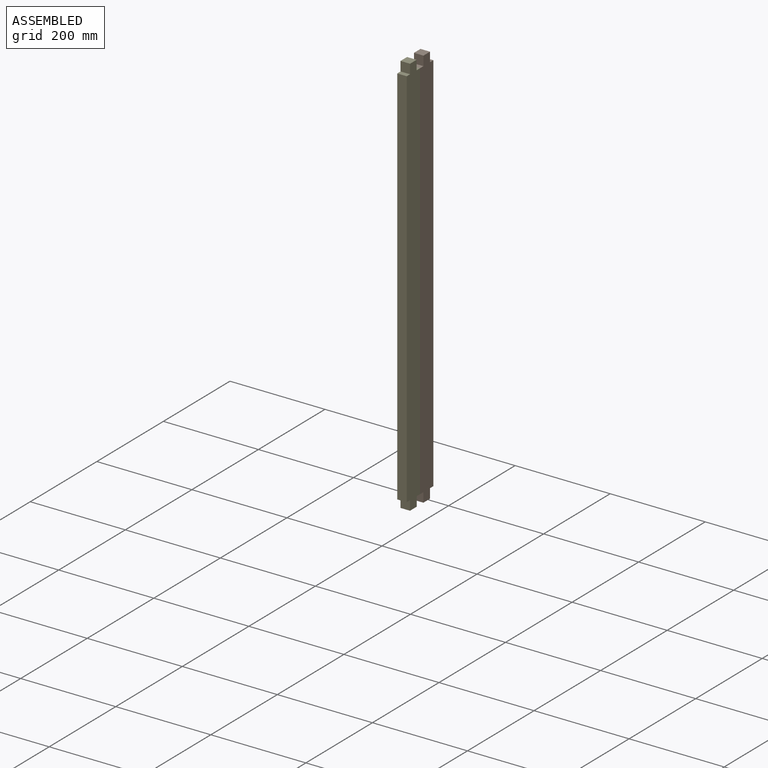
[diagram: assembled view]
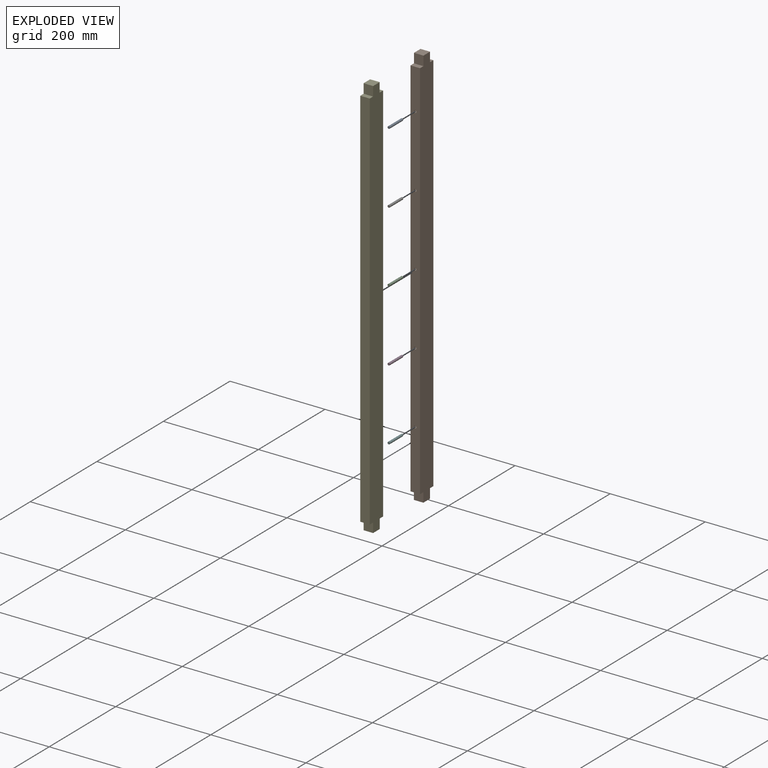
[diagram: exploded view]
GUIDED TOUR — MATED ASSEMBLY (Onshape document 5e775760d3399826247aa90b, AutoMate assembly 5e775760d3399826247aa90b_3890d378bcc9b2aa740e7287_1716aaf2044ccc38ed1a56b9_default)

This assembly has 7 components, labeled P0..P6 below (a component is one placed occurrence of a part; the same part can appear more than once), held together by 7 mates. A mate is a constraint between two components; its type names the relative motion it leaves free:
  PLANAR — leaves sliding in the plane through the listed point (normal = the listed direction) and rotation about that normal free,
  REVOLUTE — leaves rotation about the listed axis free (a hinge),
  SLIDER — leaves translation along the listed axis free.
Axis/direction vectors are unit vectors and 'through' points are millimeter coordinates, both in the assembly's world frame.

MATES
  1. REVOLUTE "Revolute 1": P5 <-> P1, axis (0.000, -1.000, 0.000) through (-237.71, -17.32, 372.23) mm
  2. REVOLUTE "Revolute 3": P2 <-> P1, axis (0.000, -1.000, 0.000) through (-237.71, -17.32, 672.23) mm
  3. PLANAR "Planar 1": P1 <-> P4, direction (0.000, -1.000, 0.000) through (-237.71, -17.32, 652.11) mm
  4. REVOLUTE "Revolute 5": P0 <-> P1, axis (0.000, -1.000, 0.000) through (-237.71, -17.32, 972.23) mm
  5. REVOLUTE "Revolute 2": P3 <-> P1, axis (0.000, -1.000, 0.000) through (-237.71, -17.32, 522.23) mm
  6. REVOLUTE "Revolute 4": P6 <-> P1, axis (0.000, -1.000, 0.000) through (-237.71, -37.32, 822.23) mm
  7. SLIDER "Slider 1": P1 <-> P4, axis (0.000, -1.000, 0.000) through (-237.71, -17.32, 672.23) mm

ASSEMBLY ORDER
  1. P6 — the base component [order verified]
  2. P2 [order verified]
  3. P3 [order verified]
  4. P5 [order verified]
  5. P0 [order verified]
  6. P4 [order verified]
  7. P1 [order verified]
Order-tag legend:
  [order verified] — this step's position reverses a verified removal order: the component was checked to insert without passing through the ones already placed.

Of the 7 components, 2 carry the full construction recipe — the FeatureScript program that regenerates the part's solid from scratch; the rest are supplied as boundary geometry only.
Each toured component is shown spotlighted twice — in the assembled view, then in the exploded view, where a leader line traces a displaced component back to its assembled socket (saturated green if recipe-attached, orange if geometry-only; every other component desaturated gray) — followed by its recipe or geometry summary and the mates that hold it.
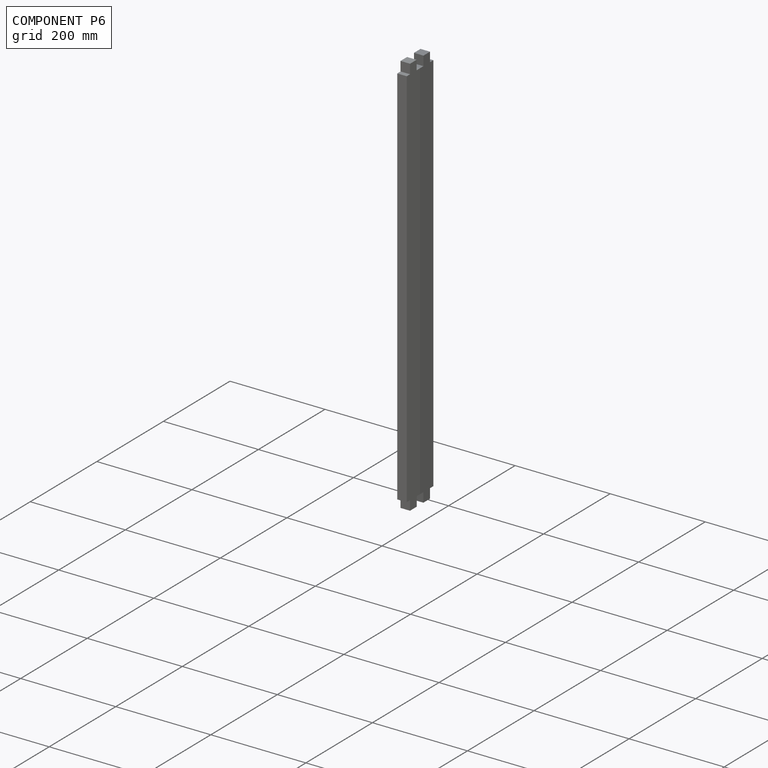
[diagram: component P6 — assembled]
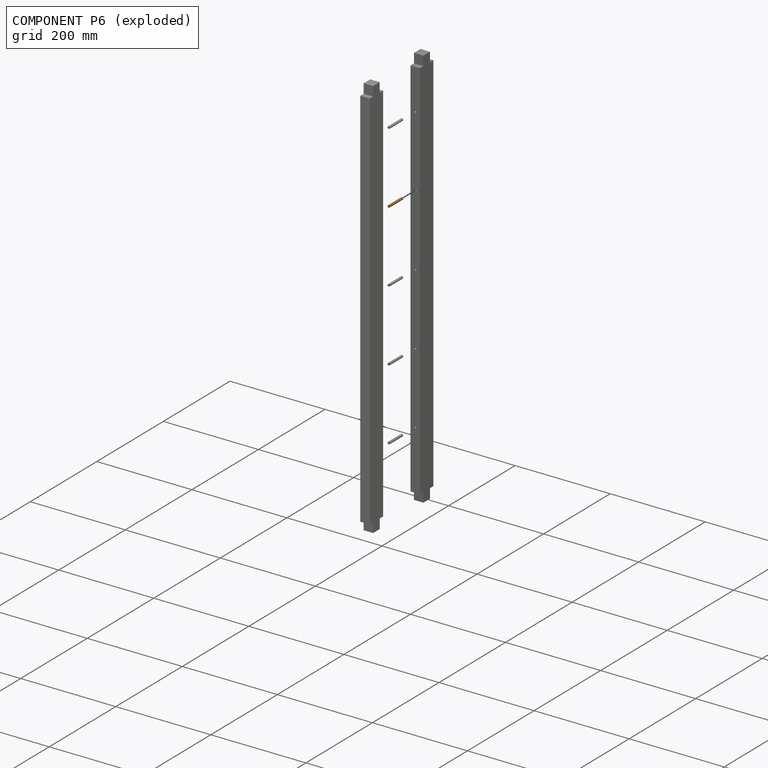
[diagram: component P6 — exploded]
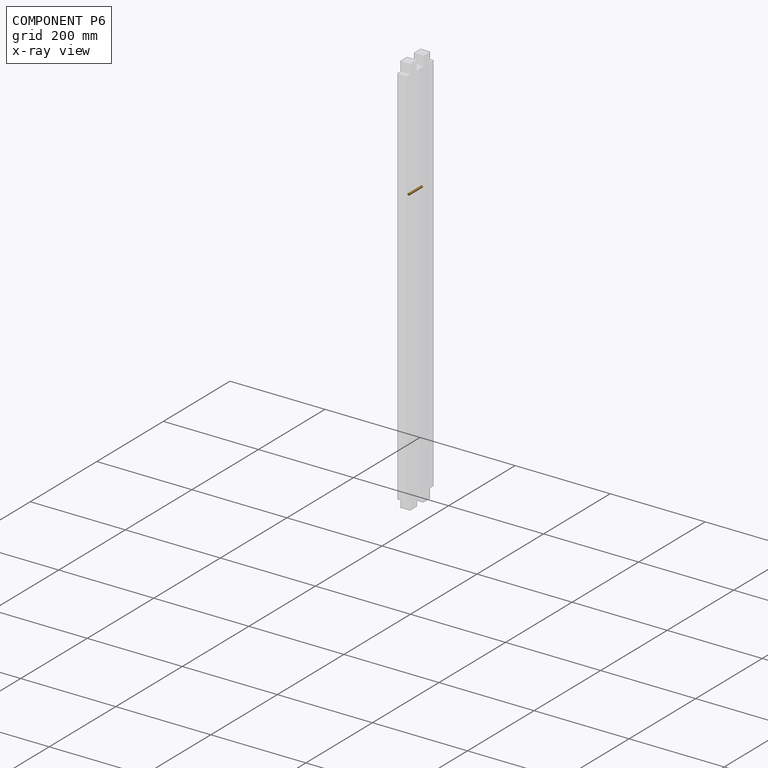
[diagram: component P6 — x-ray view]
COMPONENT P6 — geometry summary (no construction recipe available for this part):
  bounding box: 40.0 x 5.0 x 5.0 mm
  B-rep topology: 1 solid, 3 faces, 6 edges
  volume: 785 mm^3 (79% of its bounding box)
  symmetry: 2-fold rotationally symmetric about the x axis; 2-fold rotationally symmetric about the y axis; revolution-symmetric about the z axis through its bounding-box center; mirror-symmetric across its x mid-plane, y mid-plane, z mid-plane
Held by: REVOLUTE mate "Revolute 4" to P1.
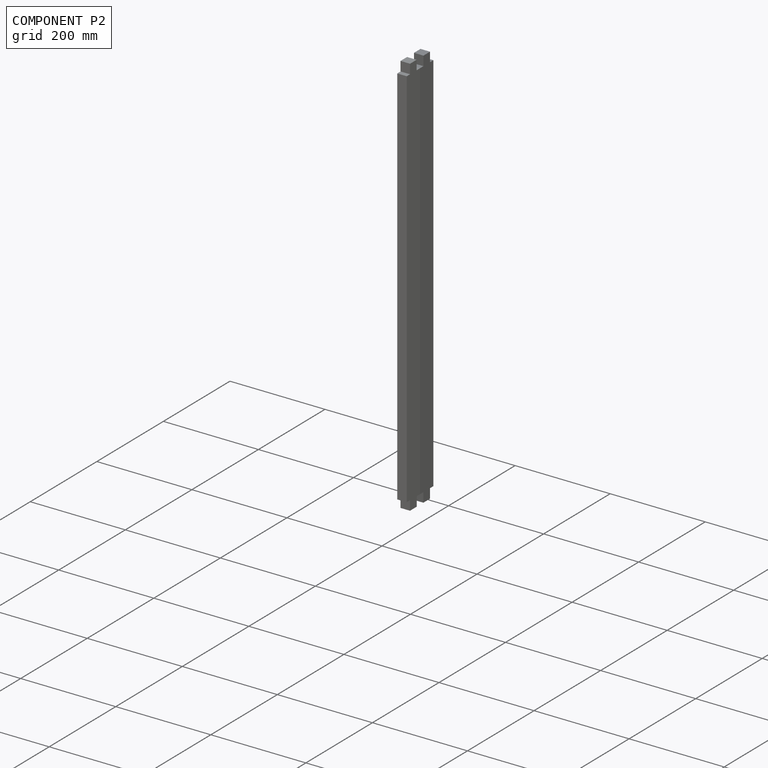
[diagram: component P2 — assembled]
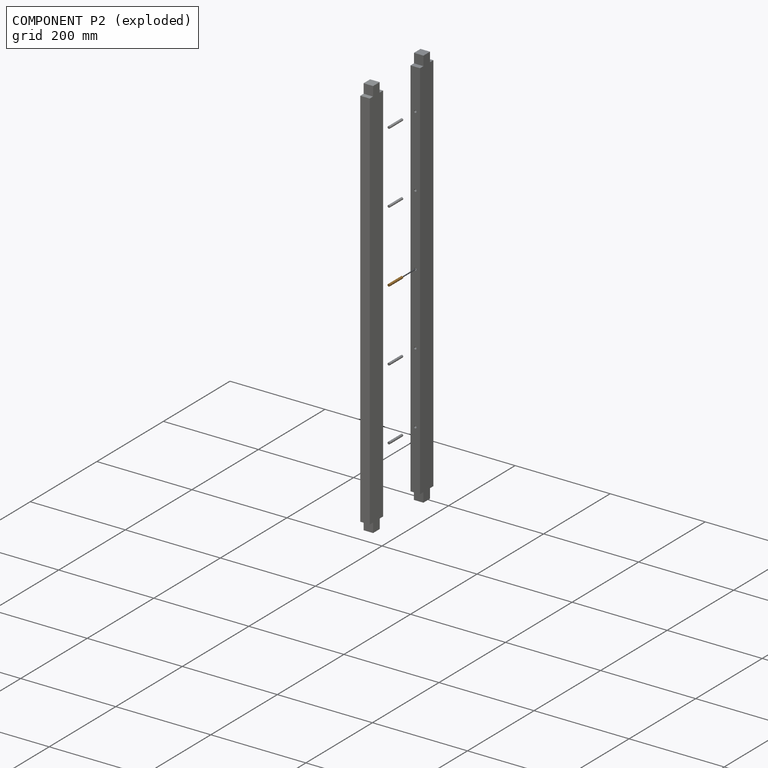
[diagram: component P2 — exploded]
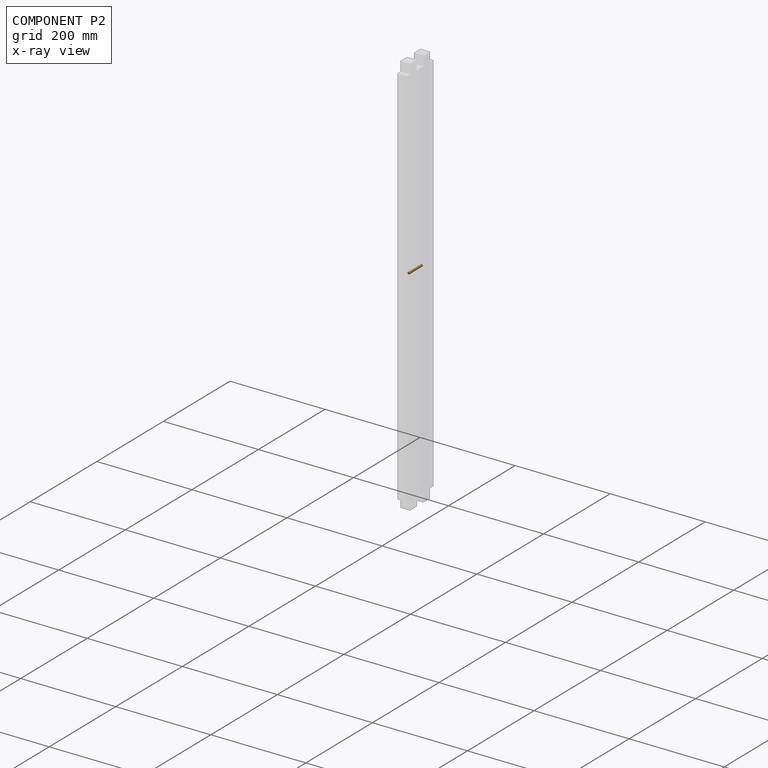
[diagram: component P2 — x-ray view]
COMPONENT P2 — geometry summary (no construction recipe available for this part):
  bounding box: 40.0 x 5.0 x 5.0 mm
  B-rep topology: 1 solid, 3 faces, 6 edges
  volume: 785 mm^3 (79% of its bounding box)
  symmetry: 2-fold rotationally symmetric about the x axis; 2-fold rotationally symmetric about the y axis; revolution-symmetric about the z axis through its bounding-box center; mirror-symmetric across its x mid-plane, y mid-plane, z mid-plane
Held by: REVOLUTE mate "Revolute 3" to P1.
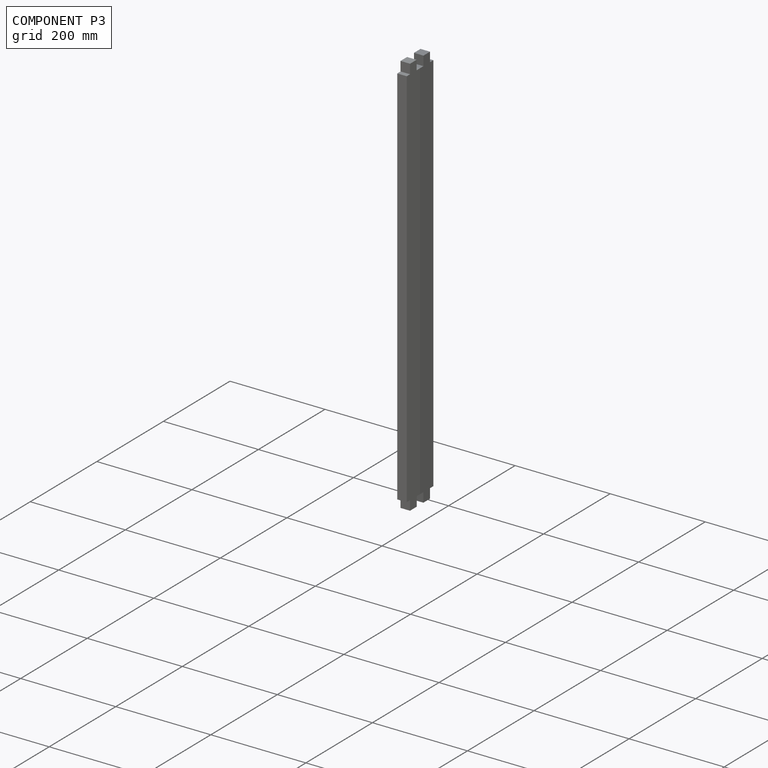
[diagram: component P3 — assembled]
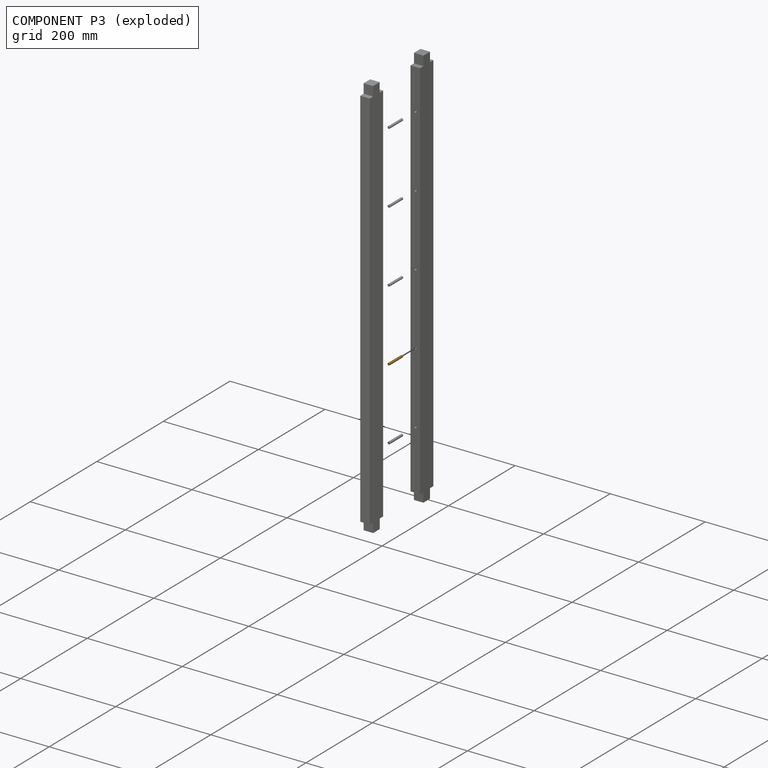
[diagram: component P3 — exploded]
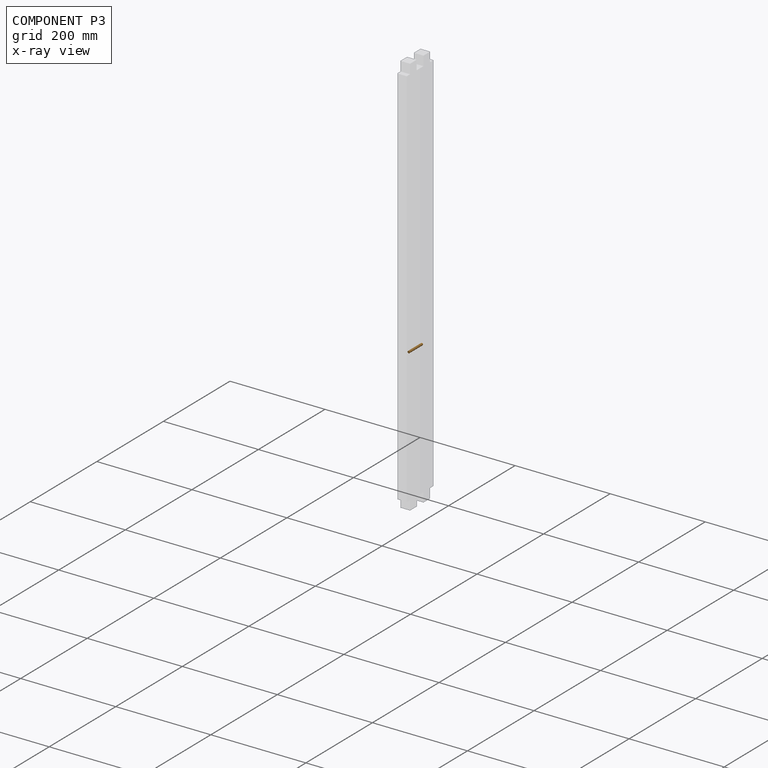
[diagram: component P3 — x-ray view]
COMPONENT P3 — geometry summary (no construction recipe available for this part):
  bounding box: 40.0 x 5.0 x 5.0 mm
  B-rep topology: 1 solid, 3 faces, 6 edges
  volume: 785 mm^3 (79% of its bounding box)
  symmetry: 2-fold rotationally symmetric about the x axis; 2-fold rotationally symmetric about the y axis; revolution-symmetric about the z axis through its bounding-box center; mirror-symmetric across its x mid-plane, y mid-plane, z mid-plane
Held by: REVOLUTE mate "Revolute 2" to P1.
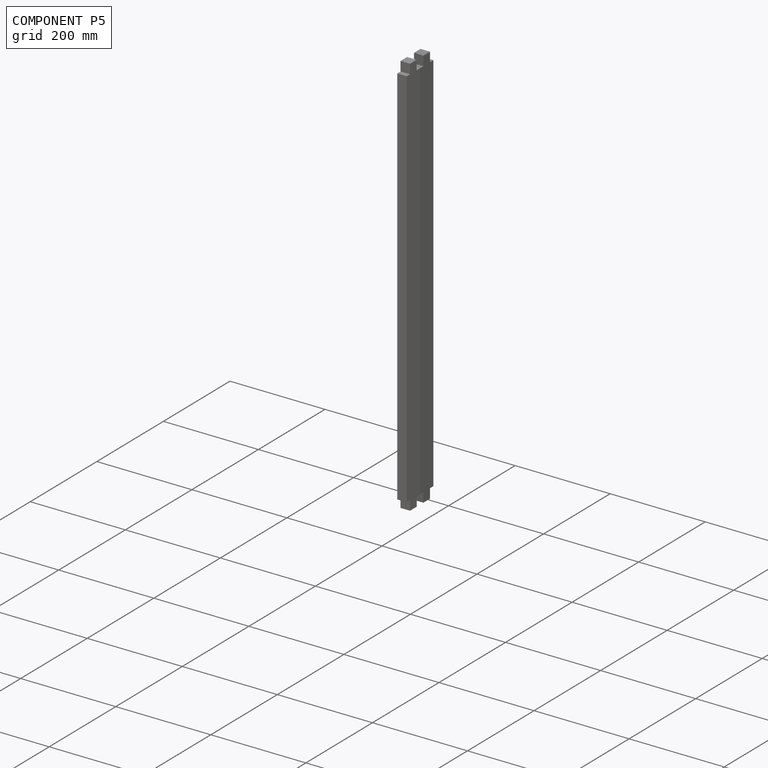
[diagram: component P5 — assembled]
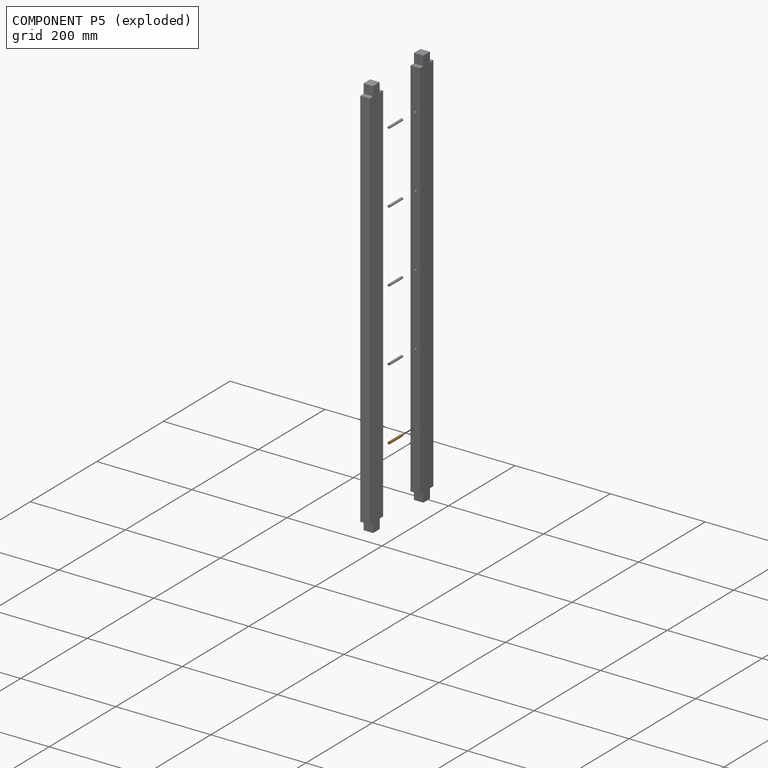
[diagram: component P5 — exploded]
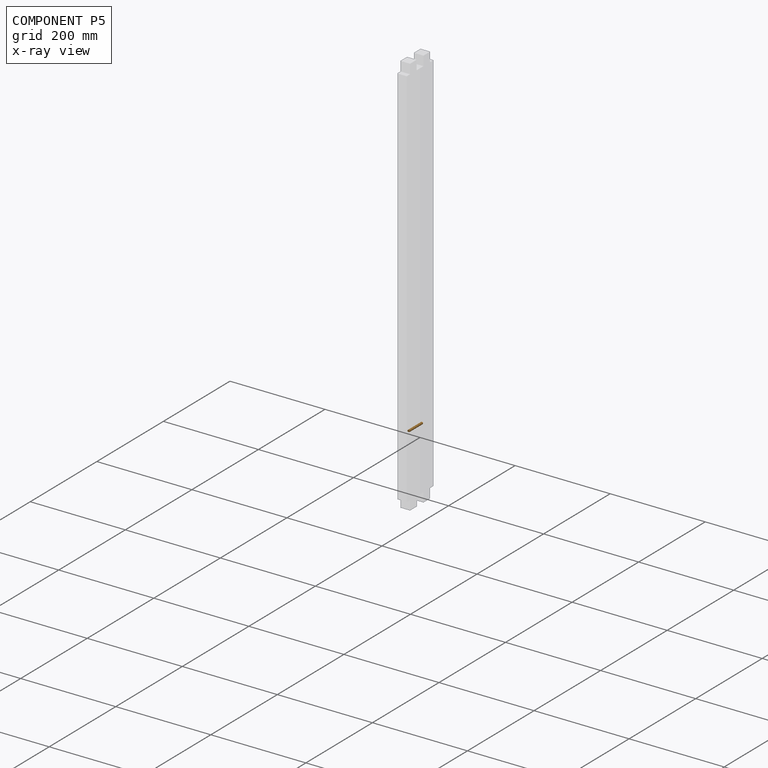
[diagram: component P5 — x-ray view]
COMPONENT P5 — geometry summary (no construction recipe available for this part):
  bounding box: 40.0 x 5.0 x 5.0 mm
  B-rep topology: 1 solid, 3 faces, 6 edges
  volume: 785 mm^3 (79% of its bounding box)
  symmetry: 2-fold rotationally symmetric about the x axis; 2-fold rotationally symmetric about the y axis; revolution-symmetric about the z axis through its bounding-box center; mirror-symmetric across its x mid-plane, y mid-plane, z mid-plane
Held by: REVOLUTE mate "Revolute 1" to P1.
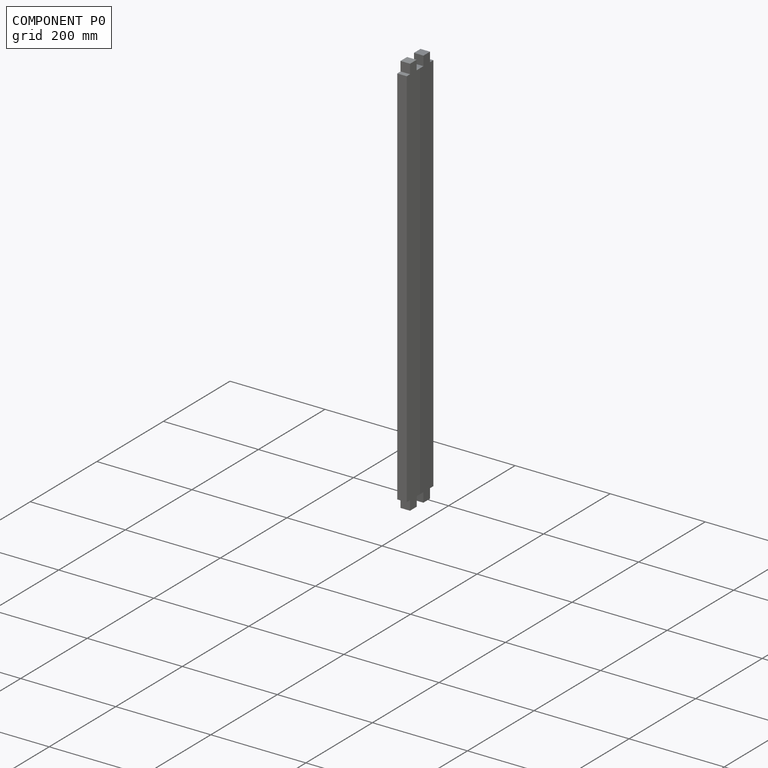
[diagram: component P0 — assembled]
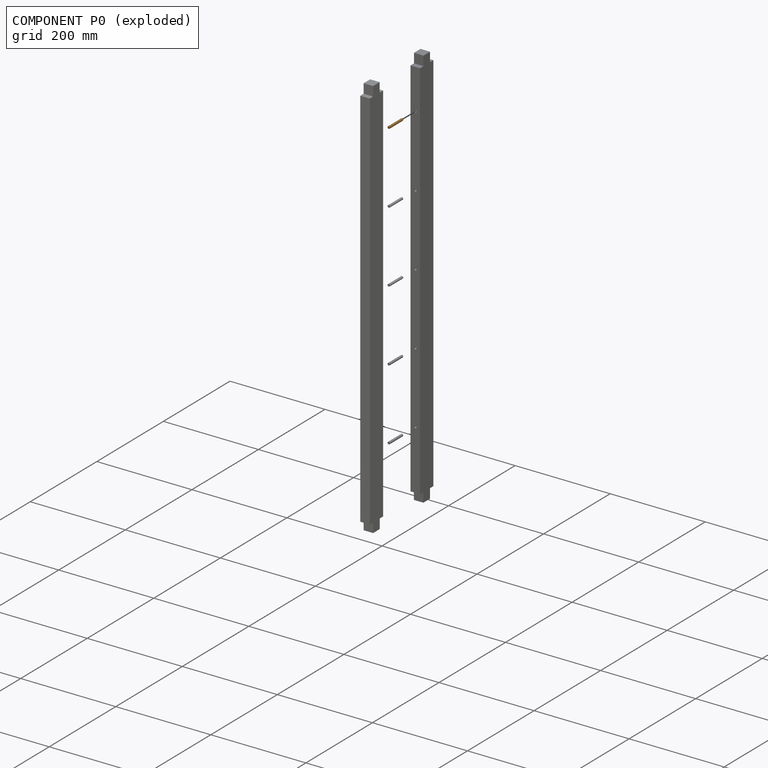
[diagram: component P0 — exploded]
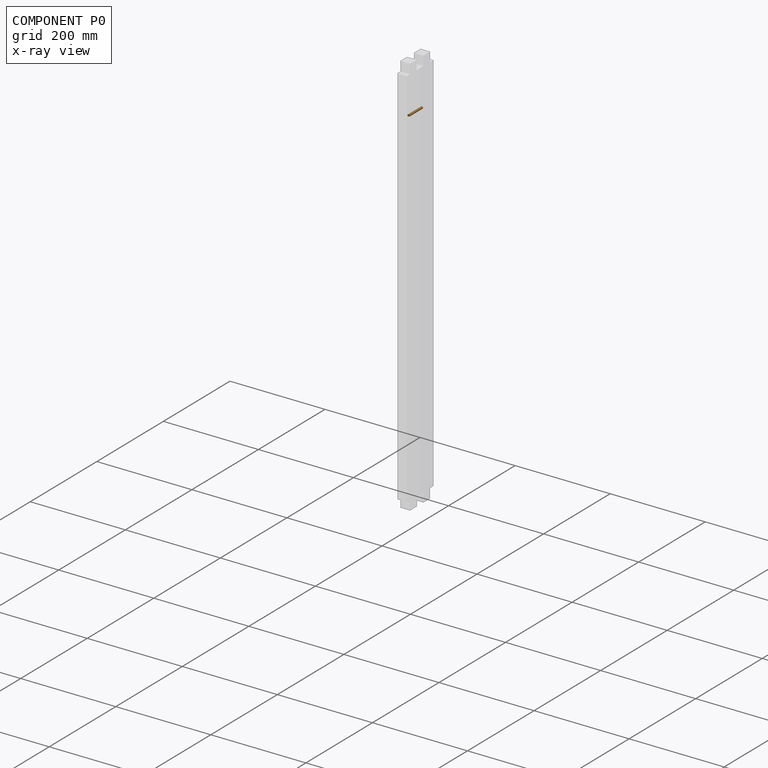
[diagram: component P0 — x-ray view]
COMPONENT P0 — geometry summary (no construction recipe available for this part):
  bounding box: 40.0 x 5.0 x 5.0 mm
  B-rep topology: 1 solid, 3 faces, 6 edges
  volume: 785 mm^3 (79% of its bounding box)
  symmetry: 2-fold rotationally symmetric about the x axis; 2-fold rotationally symmetric about the y axis; revolution-symmetric about the z axis through its bounding-box center; mirror-symmetric across its x mid-plane, y mid-plane, z mid-plane
Held by: REVOLUTE mate "Revolute 5" to P1.
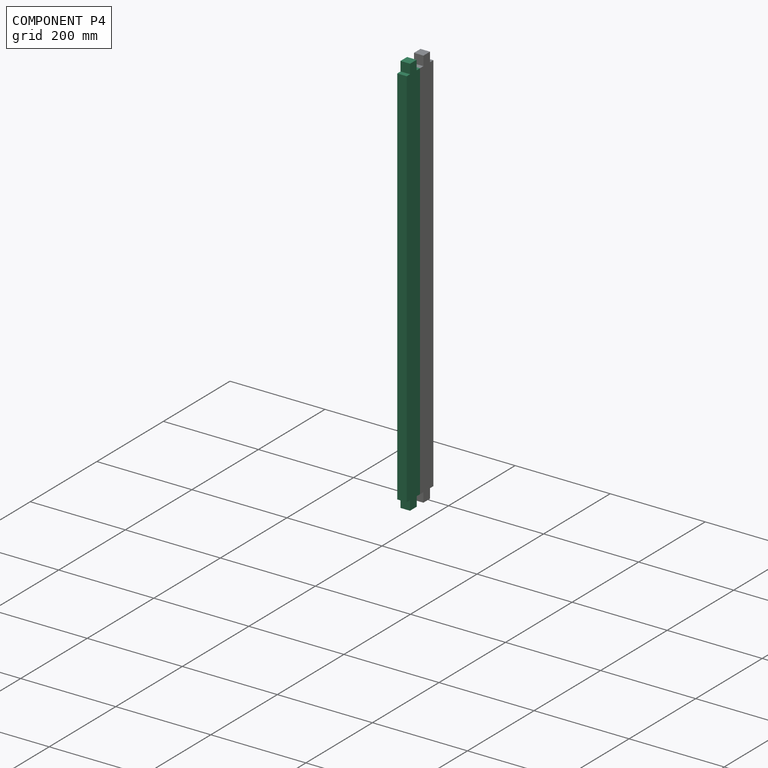
[diagram: component P4 — assembled]
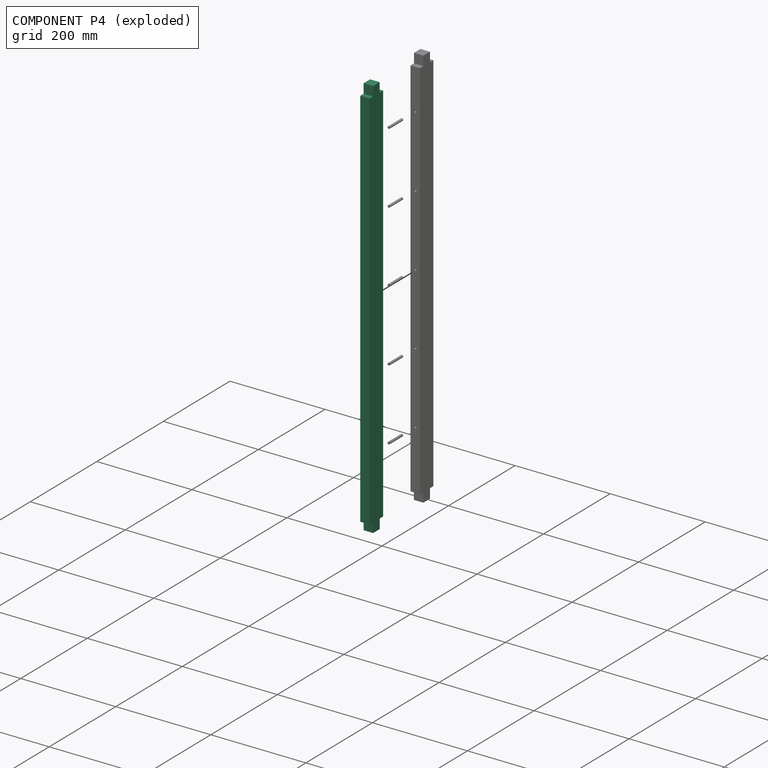
[diagram: component P4 — exploded]
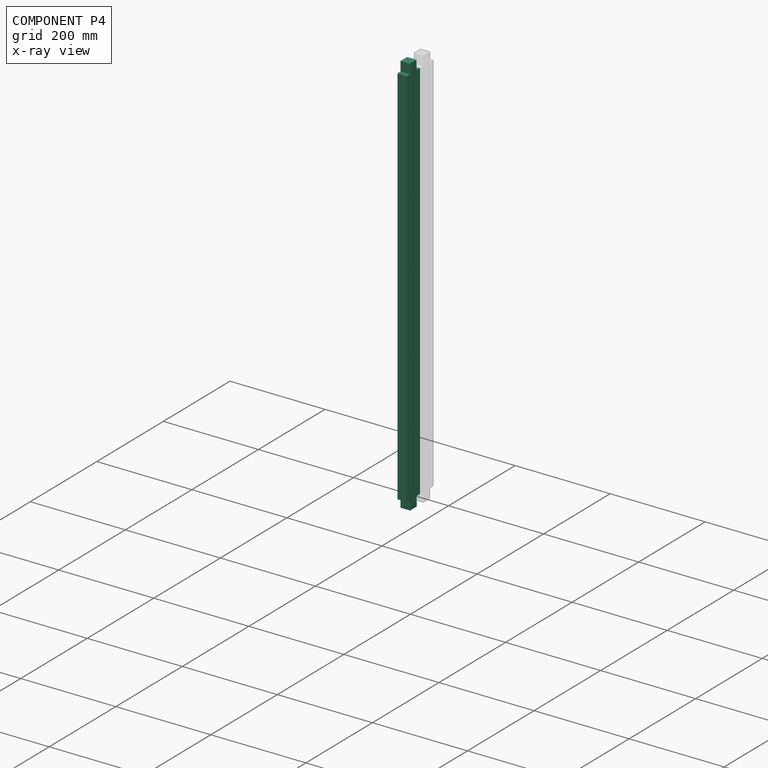
[diagram: component P4 — x-ray view]
COMPONENT P4 — same part as P1 (CADFS 00885426); its construction recipe is shown at P1.
Held by: PLANAR mate "Planar 1" to P1; SLIDER mate "Slider 1" to P1.
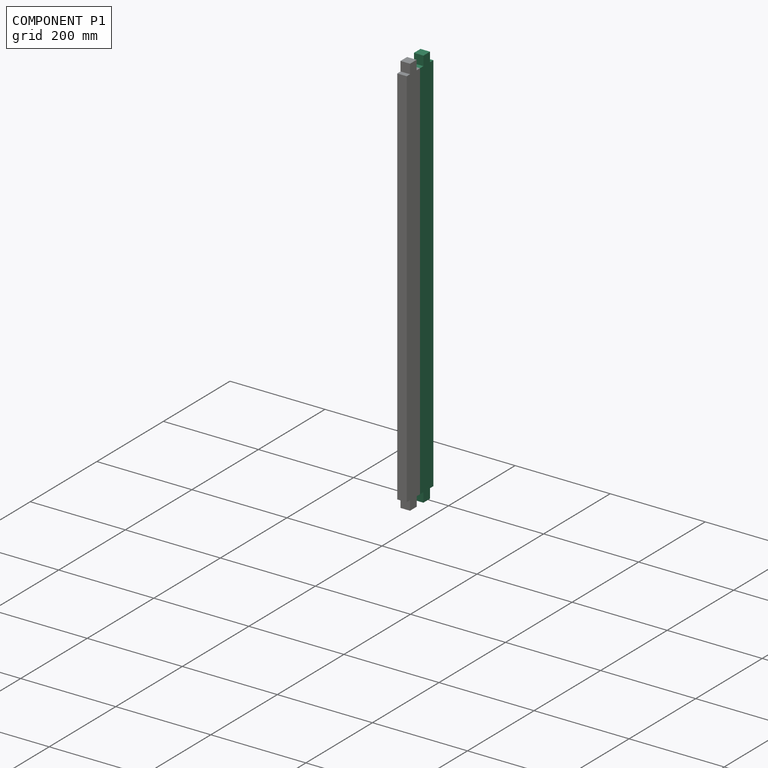
[diagram: component P1 — assembled]
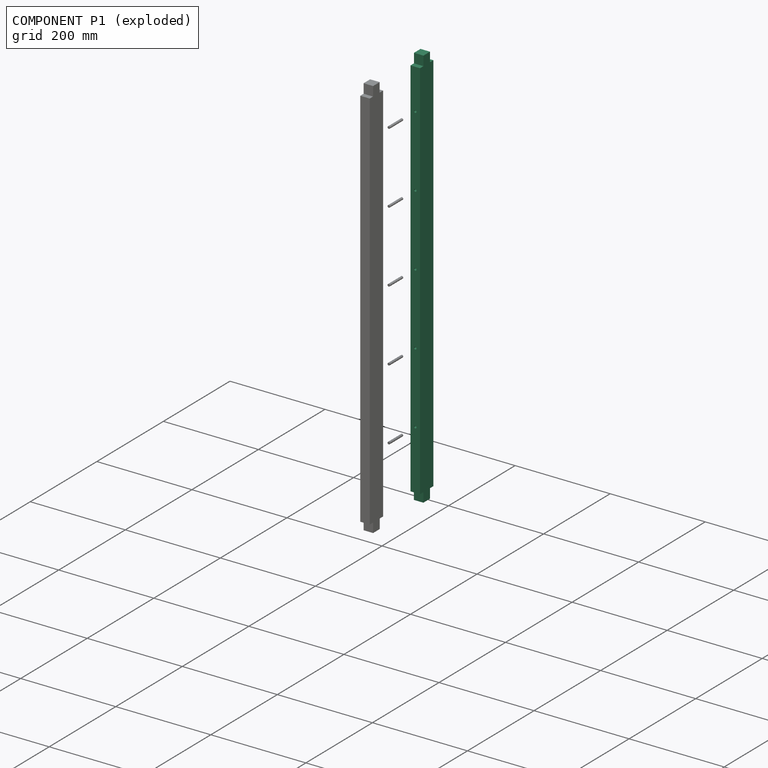
[diagram: component P1 — exploded]
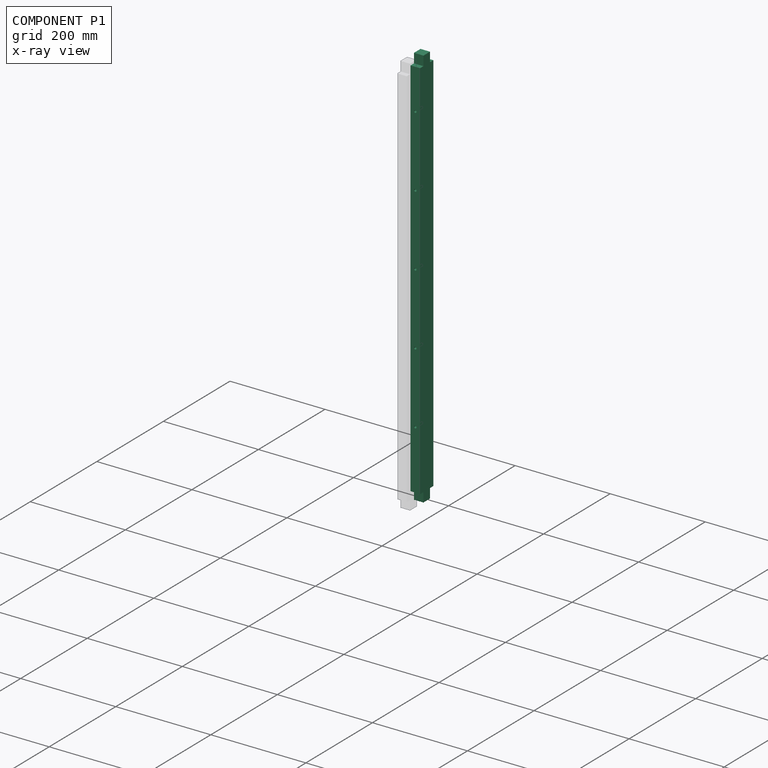
[diagram: component P1 — x-ray view]
COMPONENT P1 — recipe-attached (CADFS 00885426, mesh-verified: the recipe's output STEP matches this component's geometry to below the mesh-comparison resolution (tessellation chordal tolerance ~1.28 mm)).
Held by: REVOLUTE mate "Revolute 1" to P5; REVOLUTE mate "Revolute 3" to P2; PLANAR mate "Planar 1" to P4; REVOLUTE mate "Revolute 5" to P0; REVOLUTE mate "Revolute 2" to P3; REVOLUTE mate "Revolute 4" to P6; SLIDER mate "Slider 1" to P4.
Construction recipe (FeatureScript — the CAD program that rebuilds this solid; sketch coordinates are in the units given by the * unit suffixes, e.g. mm):

FeatureScript 1511;
import(path : "onshape/std/geometry.fs", version : "1511.0");
import(path : "onshape/std/common.fs", version : "1511.0");
const mm = millimeter;
const VERTEX = EntityType.VERTEX;
const EDGE = EntityType.EDGE;
const FACE = EntityType.FACE;
const BODY = EntityType.BODY;
function v(x, y){return vector(x, y);}
function OD(order){return orderDisambiguation(order);}
function OSD(set){return originalSetDisambiguation(set);}
function TD(topology){return topologyDisambiguation(topology);}
function TDD(query){return trueDependencyDisambiguation(query);}
function sQuery(a, b, c) {return sketchEntityQuery(a, b, c);}

annotation { "Feature Type Name" : "Feature", "Feature Type Description" : "" }
export const myFeature = defineFeature(function(context is Context, id is Id, definition is map)
    precondition{}
    {
        {
            var Q0;
            Q0=qCreatedBy(makeId("Top.planeOp"),FACE);
            var sketch = newSketch(context, id + "F0", { "sketchPlane" : qUnion([Q0])});
            skLineSegment(sketch, "E0.bottom", {"start": v(-10, 20) * mm, "end": v(10, 20) * mm});
            skLineSegment(sketch, "E0.top", {"start": v(-10, -20) * mm, "end": v(10, -20) * mm});
            skLineSegment(sketch, "E0.left", {"start": v(-10, 20) * mm, "end": v(-10, -20) * mm});
            skLineSegment(sketch, "E0.right", {"start": v(10, 20) * mm, "end": v(10, -20) * mm});
            skPoint(sketch, "E0.middle", {"position": v(0, 0) * mm});
            skSolve(sketch);
        }
        {
            var Q0;
            Q0=makeQuery(id+"F0.imprint","IMPRINT",FACE,{"disambiguationData":[TD([[makeQuery(id+"F0.imprint","IMPRINT",EDGE,{"derivedFrom":sQuery(id+"F0.wireOp",EDGE,"E0.bottom")}),-1.0]])]});
            extrude(context, id + "F1", {"entities" : qUnion([Q0]), "depth" : 850 * mm, "offsetDistance" : 25 * mm});
        }
        {
            var Q0;
            Q0=makeQuery(id+"F1.opExtrude","SWEPT_FACE",FACE,{"disambiguationData":[OSD([sQuery(id+"F0.wireOp",EDGE,"E0.bottom")])]});
            var sketch = newSketch(context, id + "F2", { "sketchPlane" : qUnion([Q0])});
            skCircle(sketch, "E1", {"center": v(0, 705) * mm, "radius": 2.5 * mm});
            skCircle(sketch, "E2", {"center": v(0, 555) * mm, "radius": 2.5 * mm});
            skCircle(sketch, "E3", {"center": v(0, 405) * mm, "radius": 2.5 * mm});
            skCircle(sketch, "E4", {"center": v(0, 255) * mm, "radius": 2.5 * mm});
            skCircle(sketch, "E5", {"center": v(0, 105) * mm, "radius": 2.5 * mm});
            skSolve(sketch);
        }
        {
            var Q0;
            Q0=makeQuery(id+"F2.imprint","IMPRINT",FACE,{"disambiguationData":[TD([[makeQuery(id+"F2.imprint","IMPRINT",EDGE,{"derivedFrom":sQuery(id+"F2.wireOp",EDGE,"E2")}),1.0]])]});
            var Q1;
            Q1=makeQuery(id+"F2.imprint","IMPRINT",FACE,{"disambiguationData":[TD([[makeQuery(id+"F2.imprint","IMPRINT",EDGE,{"derivedFrom":sQuery(id+"F2.wireOp",EDGE,"E1")}),1.0]])]});
            var Q2;
            Q2=makeQuery(id+"F2.imprint","IMPRINT",FACE,{"disambiguationData":[TD([[makeQuery(id+"F2.imprint","IMPRINT",EDGE,{"derivedFrom":sQuery(id+"F2.wireOp",EDGE,"E4")}),1.0]])]});
            var Q3;
            Q3=makeQuery(id+"F2.imprint","IMPRINT",FACE,{"disambiguationData":[TD([[makeQuery(id+"F2.imprint","IMPRINT",EDGE,{"derivedFrom":sQuery(id+"F2.wireOp",EDGE,"E5")}),1.0]])]});
            var Q4;
            Q4=makeQuery(id+"F2.imprint","IMPRINT",FACE,{"disambiguationData":[TD([[makeQuery(id+"F2.imprint","IMPRINT",EDGE,{"derivedFrom":sQuery(id+"F2.wireOp",EDGE,"E3")}),1.0]])]});
            extrude(context, id + "F3", {"entities" : qUnion([Q0, Q1, Q2, Q3, Q4]), "operationType" : NewBodyOperationType.REMOVE, "oppositeDirection" : true, "depth" : 20 * mm, "offsetDistance" : 25 * mm});
        }
        {
            var Q0;
            Q0=makeQuery(id+"F1.opExtrude","SWEPT_FACE",FACE,{"disambiguationData":[OSD([sQuery(id+"F0.wireOp",EDGE,"E0.right")])]});
            var sketch = newSketch(context, id + "F4", { "sketchPlane" : qUnion([Q0])});
            skLineSegment(sketch, "E6.bottom", {"start": v(-20, 0) * mm, "end": v(-10, 0) * mm});
            skLineSegment(sketch, "E6.top", {"start": v(-20, 20) * mm, "end": v(-10, 20) * mm});
            skLineSegment(sketch, "E6.left", {"start": v(-20, 0) * mm, "end": v(-20, 20) * mm});
            skLineSegment(sketch, "E6.right", {"start": v(-10, 0) * mm, "end": v(-10, 20) * mm});
            skLineSegment(sketch, "E7.bottom", {"start": v(20, 0) * mm, "end": v(9.65, 0) * mm});
            skLineSegment(sketch, "E7.top", {"start": v(20, 20) * mm, "end": v(9.65, 20) * mm});
            skLineSegment(sketch, "E7.left", {"start": v(20, 0) * mm, "end": v(20, 20) * mm});
            skLineSegment(sketch, "E7.right", {"start": v(9.65, 0) * mm, "end": v(9.65, 20) * mm});
            skLineSegment(sketch, "E8.bottom", {"start": v(-20, 850) * mm, "end": v(-10, 850) * mm});
            skLineSegment(sketch, "E8.top", {"start": v(-20, 830) * mm, "end": v(-10, 830) * mm});
            skLineSegment(sketch, "E8.left", {"start": v(-20, 850) * mm, "end": v(-20, 830) * mm});
            skLineSegment(sketch, "E8.right", {"start": v(-10, 850) * mm, "end": v(-10, 830) * mm});
            skLineSegment(sketch, "E9.bottom", {"start": v(20, 850) * mm, "end": v(10, 850) * mm});
            skLineSegment(sketch, "E9.top", {"start": v(20, 830) * mm, "end": v(10, 830) * mm});
            skLineSegment(sketch, "E9.left", {"start": v(20, 850) * mm, "end": v(20, 830) * mm});
            skLineSegment(sketch, "E9.right", {"start": v(10, 850) * mm, "end": v(10, 830) * mm});
            skSolve(sketch);
        }
        {
            var Q0;
            Q0=makeQuery(id+"F4.imprint","IMPRINT",FACE,{"disambiguationData":[TD([[makeQuery(id+"F4.imprint","IMPRINT",EDGE,{"derivedFrom":sQuery(id+"F4.wireOp",EDGE,"E8.bottom")}),1.0]])]});
            var Q1;
            Q1=makeQuery(id+"F4.imprint","IMPRINT",FACE,{"disambiguationData":[TD([[makeQuery(id+"F4.imprint","IMPRINT",EDGE,{"derivedFrom":sQuery(id+"F4.wireOp",EDGE,"E9.bottom")}),1.0]])]});
            var Q2;
            Q2=makeQuery(id+"F4.imprint","IMPRINT",FACE,{"disambiguationData":[TD([[makeQuery(id+"F4.imprint","IMPRINT",EDGE,{"derivedFrom":sQuery(id+"F4.wireOp",EDGE,"E7.bottom")}),-1.0]])]});
            var Q3;
            Q3=makeQuery(id+"F4.imprint","IMPRINT",FACE,{"disambiguationData":[TD([[makeQuery(id+"F4.imprint","IMPRINT",EDGE,{"derivedFrom":sQuery(id+"F4.wireOp",EDGE,"E6.bottom")}),-1.0]])]});
            extrude(context, id + "F5", {"entities" : qUnion([Q0, Q1, Q2, Q3]), "operationType" : NewBodyOperationType.REMOVE, "oppositeDirection" : true, "depth" : 500 * mm, "offsetDistance" : 25 * mm});
        }
    });
PROVENANCE & LICENSES
Assembly (occurrences, transforms, mates, per-part STEP geometry): AutoMate dataset, Zenodo record 7776208, CC0.
Construction recipes: CADFS (HuggingFace VladPyatov/CADFS, CC-BY-4.0, layered over the ABC dataset), FeatureScript reconstruction programs keyed by ABC model id.
Join: ABC meta listings map ABC model id -> Onshape documentId; within a shared document, parts are matched by geometric signature (bounding-box dims + volume at 0.1% relative tolerance, exact B-rep face/solid counts).
Verification: 2 of this assembly's 7 components carry a recipe attachment, and every attachment is mesh-verified: the CADFS STEP and the AutoMate member STEP were compared as meshes in their shared local frame (symmetric sampled-point-to-mesh distance); worst across the 2 attachments: below the mesh-comparison resolution (tessellation chordal tolerance ~1.28 mm) on a 851 mm part.
Renders: orthographic iso camera (az 35 / el 25); the floor grid conveys scale (grid pitch printed in each image; no ruler). In the exploded view each component is displaced by its stored offset vector: the offsets alone carry the explosion direction (mate normal/axis signs are not orientation cues and do not encode it), and separation distances are assigned per mate-chain, not proportionally to assembly-order depth.
